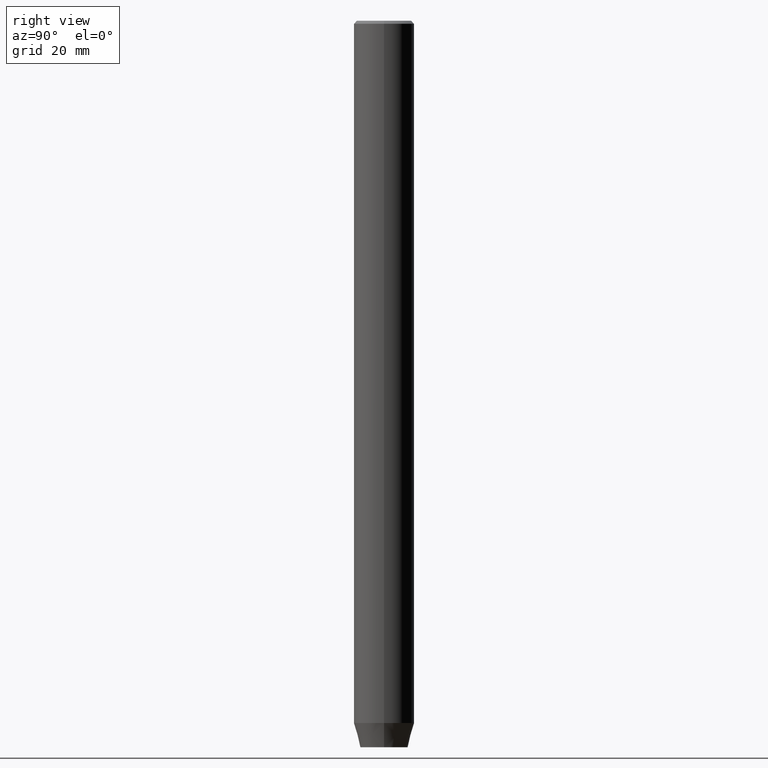
[diagram: clean part render]
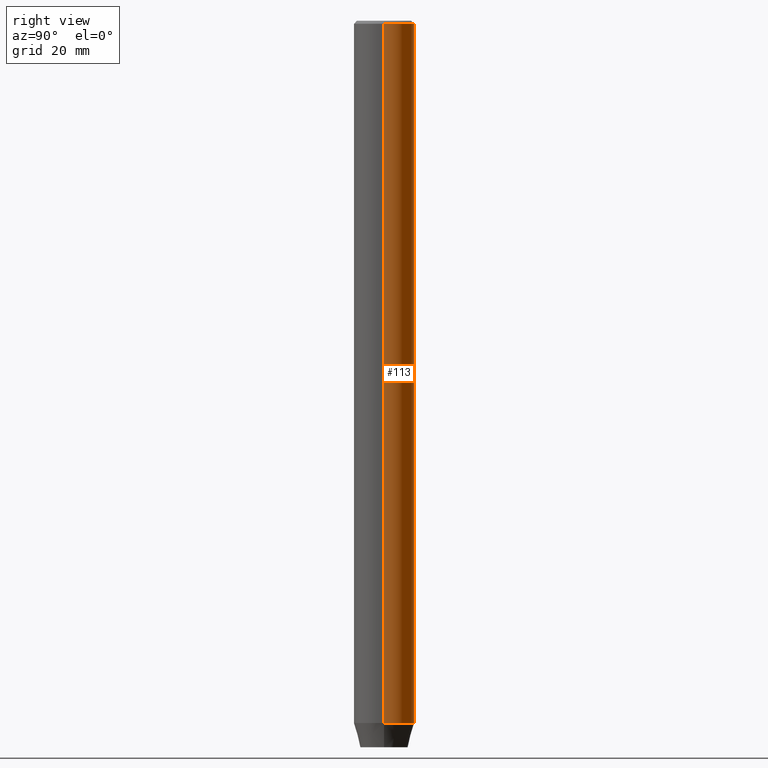
[diagram: same view with one face highlighted and labeled with its STEP entity id]
A machine part, right view. The second image highlights one B-rep face of the part: STEP entity #113.
In plain terms, the highlighted cylindrical surface (edge-blend (fillet) strip) has radius 5 mm, axis along (-0, -0, 1).
Its self-contained STEP definition (entity closure, byte-faithful):
#6 = ORIENTED_EDGE ( 'NONE', *, *, #323, .F. ) ;
#8 = AXIS2_PLACEMENT_3D ( 'NONE', #424, #153, #566 ) ;
#21 = CIRCLE ( 'NONE', #394, 5.000000000000000000 ) ;
#23 = VERTEX_POINT ( 'NONE', #554 ) ;
#42 = EDGE_LOOP ( 'NONE', ( #317, #228, #353, #6 ) ) ;
#68 = LINE ( 'NONE', #374, #486 ) ;
#72 = CYLINDRICAL_SURFACE ( 'NONE', #8, 5.000000000000000000 ) ;
#77 = DIRECTION ( 'NONE',  ( -0.000000000000000000, -0.000000000000000000, 1.000000000000000000 ) ) ;
#113 = ADVANCED_FACE ( 'NONE', ( #469 ), #72, .T. ) ;
#122 = CARTESIAN_POINT ( 'NONE',  ( -5.000000000000000000, 6.123233995736766282E-16, -0.5000000000000135447 ) ) ;
#153 = DIRECTION ( 'NONE',  ( -0.000000000000000000, -0.000000000000000000, 1.000000000000000000 ) ) ;
#161 = VERTEX_POINT ( 'NONE', #122 ) ;
#206 = VECTOR ( 'NONE', #77, 1000.000000000000000 ) ;
#208 = CARTESIAN_POINT ( 'NONE',  ( -5.000000000000000000, 6.123233995736766282E-16, 0.000000000000000000 ) ) ;
#213 = DIRECTION ( 'NONE',  ( -0.000000000000000000, -0.000000000000000000, 1.000000000000000000 ) ) ;
#228 = ORIENTED_EDGE ( 'NONE', *, *, #398, .T. ) ;
#232 = CIRCLE ( 'NONE', #306, 5.000000000000000000 ) ;
#296 = CARTESIAN_POINT ( 'NONE',  ( 0.000000000000000000, 0.000000000000000000, -0.5000000000000135447 ) ) ;
#306 = AXIS2_PLACEMENT_3D ( 'NONE', #474, #213, #389 ) ;
#317 = ORIENTED_EDGE ( 'NONE', *, *, #336, .T. ) ;
#323 = EDGE_CURVE ( 'NONE', #345, #411, #68, .T. ) ;
#336 = EDGE_CURVE ( 'NONE', #345, #23, #232, .T. ) ;
#345 = VERTEX_POINT ( 'NONE', #529 ) ;
#353 = ORIENTED_EDGE ( 'NONE', *, *, #423, .T. ) ;
#374 = CARTESIAN_POINT ( 'NONE',  ( 5.000000000000000000, 0.000000000000000000, 0.000000000000000000 ) ) ;
#388 = CARTESIAN_POINT ( 'NONE',  ( 5.000000000000000000, 0.000000000000000000, -0.5000000000000135447 ) ) ;
#389 = DIRECTION ( 'NONE',  ( 1.000000000000000000, 0.000000000000000000, 0.000000000000000000 ) ) ;
#394 = AXIS2_PLACEMENT_3D ( 'NONE', #296, #481, #518 ) ;
#398 = EDGE_CURVE ( 'NONE', #23, #161, #571, .T. ) ;
#411 = VERTEX_POINT ( 'NONE', #388 ) ;
#423 = EDGE_CURVE ( 'NONE', #161, #411, #21, .T. ) ;
#424 = CARTESIAN_POINT ( 'NONE',  ( 0.000000000000000000, 0.000000000000000000, 0.000000000000000000 ) ) ;
#469 = FACE_OUTER_BOUND ( 'NONE', #42, .T. ) ;
#474 = CARTESIAN_POINT ( 'NONE',  ( 0.000000000000000000, 0.000000000000000000, -115.9999999999999858 ) ) ;
#481 = DIRECTION ( 'NONE',  ( 0.000000000000000000, 0.000000000000000000, -1.000000000000000000 ) ) ;
#486 = VECTOR ( 'NONE', #562, 1000.000000000000000 ) ;
#518 = DIRECTION ( 'NONE',  ( 1.000000000000000000, 0.000000000000000000, 0.000000000000000000 ) ) ;
#529 = CARTESIAN_POINT ( 'NONE',  ( 5.000000000000000000, 0.000000000000000000, -115.9999999999999858 ) ) ;
#554 = CARTESIAN_POINT ( 'NONE',  ( -5.000000000000000000, 6.123233995736766282E-16, -115.9999999999999858 ) ) ;
#562 = DIRECTION ( 'NONE',  ( -0.000000000000000000, -0.000000000000000000, 1.000000000000000000 ) ) ;
#566 = DIRECTION ( 'NONE',  ( 1.000000000000000000, 0.000000000000000000, 0.000000000000000000 ) ) ;
#571 = LINE ( 'NONE', #208, #206 ) ;